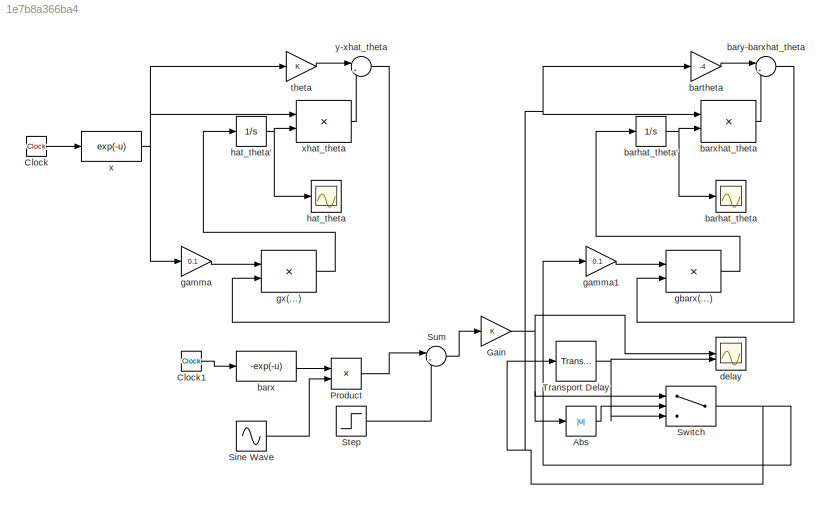
MODEL slx_1e7b8a366ba4
KIND model
CONFIG AbsTol = auto
CONFIG EnableMultiTasking = off
CONFIG FixedStep = 1e-3
CONFIG MaxStep = auto
CONFIG MinStep = auto
CONFIG RelTol = 1e-3
CONFIG SampleTimeConstraint = Unconstrained
CONFIG SolverName = FixedStepAuto
CONFIG StartTime = 0.0
CONFIG StopTime = 150.0
BLOCK [Abs] Abs
  SaturateOnIntegerOverflow = off
BLOCK [Clock] Clock
BLOCK [Clock] Clock1
BLOCK [Gain] Gain
BLOCK [Product] Product
BLOCK [Sin] Sine Wave
  SampleTime = 0
BLOCK [Step] Step
  SampleTime = 0
  Time = 100
BLOCK [Sum] Sum
  Inputs = |++
BLOCK [Switch] Switch
  Criteria = u2 > Threshold
  InputSameDT = off
  SaturateOnIntegerOverflow = off
  Threshold = exp(-2)
BLOCK [TransportDelay] Transport Delay
  DelayTime = 2
BLOCK [Scope] barhat_theta
  Floating = off
  NumInputPorts = 1
  ScopeSpecificationString = Simulink.scopes.TimeScopeBlockCfg('CurrentConfiguration', extmgr.ConfigurationSet(extmgr.Configuration('Core','General UI',true,'FigureColor',[1 1 1]),extmgr.Configuration('Core','Source UI',true),extmgr.Configuration('Sources','WiredSimulink',true,'DataLoggingVariableName','ScopeData1'),extmgr.Configuration('Visuals','Time Domain',true,'SerializedDisplays',{struct('MinYLimReal','-4.48307','MaxYLi...<+1602ch>
BLOCK [Integrator] barhat_theta'
BLOCK [Gain] bartheta
  Gain = -4
BLOCK [Fcn] barx
  Expr = -exp(-u)
BLOCK [Product] barxhat_theta
  Multiplication = Matrix(*)
BLOCK [Sum] bary-barxhat_theta
  Inputs = |+-
  NameLocation = top
BLOCK [Scope] delay
  Floating = off
  NumInputPorts = 2
  ScopeSpecificationString = Simulink.scopes.TimeScopeBlockCfg('CurrentConfiguration', extmgr.ConfigurationSet(extmgr.Configuration('Core','General UI',true,'FigureColor',[1 1 1]),extmgr.Configuration('Core','Source UI',true),extmgr.Configuration('Sources','WiredSimulink',true,'DataLoggingVariableName','ScopeData2'),extmgr.Configuration('Visuals','Time Domain',true,'SerializedDisplays',{struct('MinYLimReal','-0.4877','MaxYLim...<+1721ch>
BLOCK [Gain] gamma
  Gain = 0.1
BLOCK [Gain] gamma1
  Gain = 0.1
BLOCK [Product] gbarx(...)
  Multiplication = Matrix(*)
BLOCK [Product] gx(...)
  Multiplication = Matrix(*)
BLOCK [Scope] hat_theta
  Floating = off
  NumInputPorts = 1
  ScopeSpecificationString = Simulink.scopes.TimeScopeBlockCfg('CurrentConfiguration', extmgr.ConfigurationSet(extmgr.Configuration('Core','General UI',true,'FigureColor',[1 1 1]),extmgr.Configuration('Core','Source UI',true),extmgr.Configuration('Sources','WiredSimulink',true),extmgr.Configuration('Visuals','Time Domain',true,'SerializedDisplays',{struct('MinYLimReal','-0.0061','MaxYLimReal','0.05487','YLabelReal','','MinYLi...<+1556ch>
BLOCK [Integrator] hat_theta'
BLOCK [Gain] theta
BLOCK [Fcn] x
  Expr = exp(-u)
BLOCK [Product] xhat_theta
  Multiplication = Matrix(*)
BLOCK [Sum] y-xhat_theta
  Inputs = |+-
  NameLocation = top
LINE Abs:1 -> Switch:2
LINE Clock1:1 -> barx:1
LINE Clock:1 -> x:1
NET Gain:1 -> Abs:1, Switch:1, delay:1
LINE Product:1 -> Sum:1
LINE Sine Wave:1 -> Product:2
LINE Step:1 -> Sum:2
LINE Sum:1 -> Gain:1
NET Switch:1 -> Transport Delay:1, bartheta:1, barxhat_theta:1, gamma1:1
NET Transport Delay:1 -> Switch:3, delay:2
NET barhat_theta':1 -> barhat_theta:1, barxhat_theta:2
LINE bartheta:1 -> bary-barxhat_theta:1
LINE barx:1 -> Product:1
LINE barxhat_theta:1 -> bary-barxhat_theta:2
LINE bary-barxhat_theta:1 -> gbarx(...):2
LINE gamma1:1 -> gbarx(...):1
LINE gamma:1 -> gx(...):1
LINE gbarx(...):1 -> barhat_theta':1
LINE gx(...):1 -> hat_theta':1
NET hat_theta':1 -> hat_theta:1, xhat_theta:2
LINE theta:1 -> y-xhat_theta:1
NET x:1 -> gamma:1, theta:1, xhat_theta:1
LINE xhat_theta:1 -> y-xhat_theta:2
LINE y-xhat_theta:1 -> gx(...):2
note: NET lines group one-source signal fan-out (src -> all destinations, sorted); 1:1 wires keep LINE
